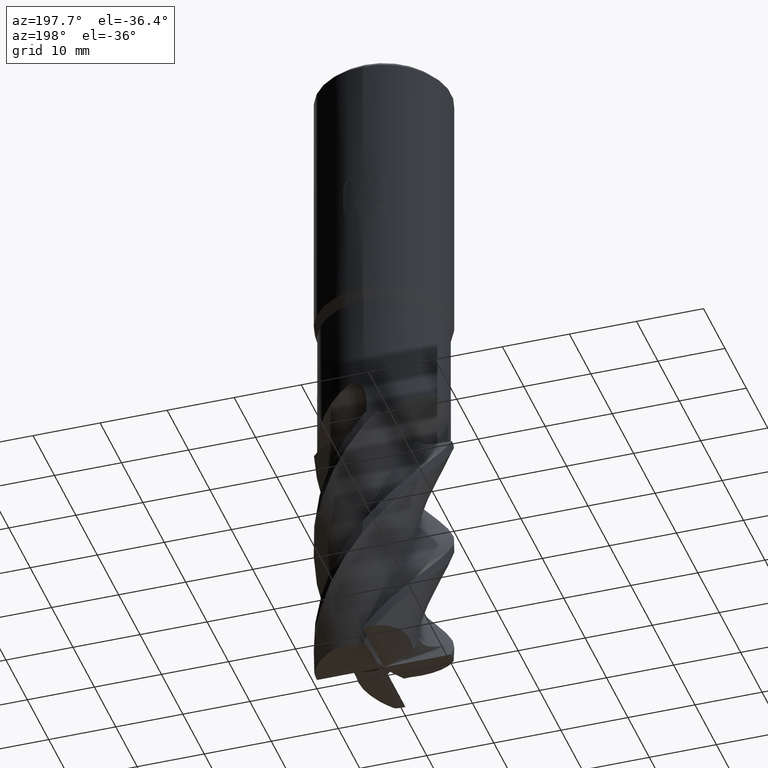
[diagram: clean part render]
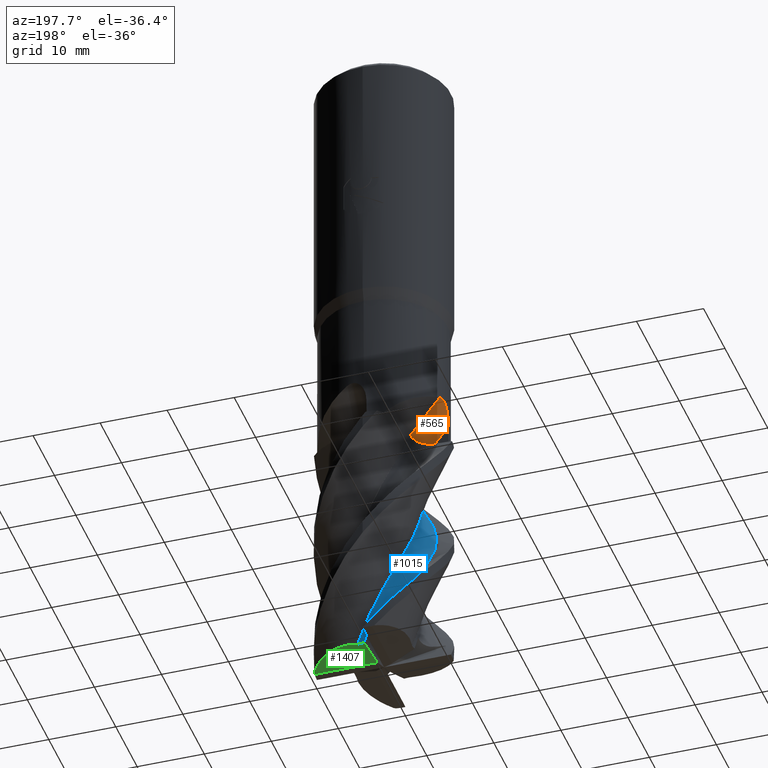
[diagram: same view with three faces highlighted in distinct colors, each labeled with its STEP entity id]
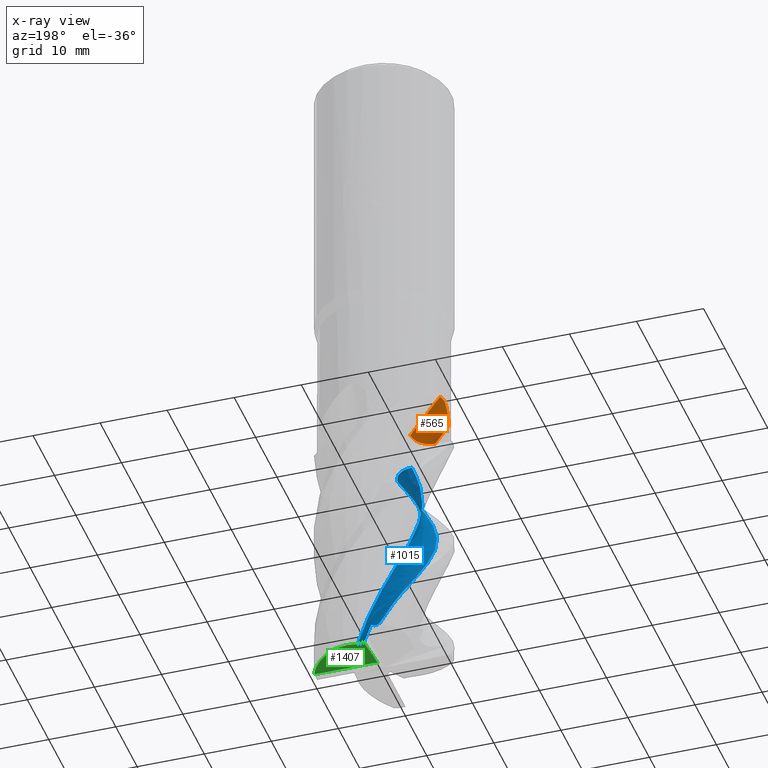
[diagram: x-ray of the same camera — body ghosted, the three highlighted faces saturated]
A machine part, auxiliary view with three faces highlighted in distinct colors.
The next image is the same camera in x-ray (body ghosted, the three faces saturated) — at least one of them is partly hidden behind the body in this view.
Their STEP definitions:

[orange] entity #565 — the highlighted face is a SurfaceOfRevolution surface.
#565=ADVANCED_FACE('',(#1525),#1526,.F.);
#691=EDGE_CURVE('',#1255,#899,#1662,.T.);
#703=EDGE_CURVE('',#875,#1255,#1674,.T.);
#719=EDGE_CURVE('',#875,#823,#1691,.T.);
#823=VERTEX_POINT('',#1804);
#875=VERTEX_POINT('',#1858);
#899=VERTEX_POINT('',#1884);
#1255=VERTEX_POINT('',#2276);
#1303=EDGE_CURVE('',#899,#823,#2329,.T.);
#1525=FACE_OUTER_BOUND('',#3275,.T.);
#1526=SURFACE_OF_REVOLUTION('',#3276,#3277);
#1662=CIRCLE('',#3970,169.294436213456);
#1674=CIRCLE('',#4023,2.875);
#1691=CIRCLE('',#4049,168.508019031104);
#1804=CARTESIAN_POINT('',(-9.49177258197859,-0.39408533910758,-59.3615788826867));
#1858=CARTESIAN_POINT('',(-7.51669513574795,-0.35343915504734,-61.9999999999951));
#1884=CARTESIAN_POINT('',(-9.14592295504645,2.56926902111368,-56.1878462320742));
#2276=CARTESIAN_POINT('',(-4.77990298355633,2.65342278330758,-61.9999999999951));
#2329=B_SPLINE_CURVE_WITH_KNOTS('',3,(#9956,#9957,#9958,#9959,#9960,#9961,#9962,#9963,#9964,#9965,#9966,#9967,#9968,#9969),.UNSPECIFIED.,.F.,.F.,(4,2,2,2,2,2,4),(0.0,0.732613013279401,1.36558704273743,2.04657484516802,2.98070721254951,4.03699958921365,5.14732681406137),.UNSPECIFIED.);
#3275=EDGE_LOOP('',(#10811,#10812,#10813,#10814));
#3276=(B_SPLINE_CURVE(3,(#10816,#10817,#10818,#10819,#10820),.UNSPECIFIED.,.F.,.F.)B_SPLINE_CURVE_WITH_KNOTS((4,1,4),(-1.19961172571473,-0.785398163361073,-0.371184601007419),.UNSPECIFIED.)RATIONAL_B_SPLINE_CURVE((1.1715728752377,1.05719095841257,0.942809041587432,1.05719095841257,1.1715728752377))BOUNDED_CURVE()REPRESENTATION_ITEM('')GEOMETRIC_REPRESENTATION_ITEM()CURVE());
#3277=AXIS1_PLACEMENT('',#10827,#10828);
#3970=AXIS2_PLACEMENT_3D('',#10953,#10954,#10955);
#4023=AXIS2_PLACEMENT_3D('',#10959,#10960,#10961);
#4049=AXIS2_PLACEMENT_3D('',#10971,#10972,#10973);
#9956=CARTESIAN_POINT('',(-9.14592295504822,2.56926902110741,-56.1878462323343));
#9957=CARTESIAN_POINT('',(-9.20714841644829,2.35132245799859,-56.0962684124973));
#9958=CARTESIAN_POINT('',(-9.26351361049668,2.12033981813184,-56.0426993187844));
#9959=CARTESIAN_POINT('',(-9.35353560888293,1.67475945129296,-56.0433158578866));
#9960=CARTESIAN_POINT('',(-9.3870771095725,1.47307926542929,-56.0839098540442));
#9961=CARTESIAN_POINT('',(-9.44167498067975,1.07142739087939,-56.2480480727839));
#9962=CARTESIAN_POINT('',(-9.46037230334028,0.882505424464488,-56.3736241078467));
#9963=CARTESIAN_POINT('',(-9.49043577823173,0.48387624666433,-56.733780461498));
#9964=CARTESIAN_POINT('',(-9.49662525499514,0.293639512245501,-56.990237134853));
#9965=CARTESIAN_POINT('',(-9.50145497633294,-0.0299313587925358,-57.5715458102741));
#9966=CARTESIAN_POINT('',(-9.49904386242732,-0.157642442013436,-57.909573448037));
#9967=CARTESIAN_POINT('',(-9.49442164584625,-0.336814810070139,-58.6138815606055));
#9968=CARTESIAN_POINT('',(-9.49210287405642,-0.386130063998785,-58.9884374972583));
#9969=CARTESIAN_POINT('',(-9.49177258198277,-0.394085339007568,-59.3615788826872));
#10811=ORIENTED_EDGE('',*,*,#1303,.F.);
#10812=ORIENTED_EDGE('',*,*,#691,.F.);
#10813=ORIENTED_EDGE('',*,*,#703,.F.);
#10814=ORIENTED_EDGE('',*,*,#719,.T.);
#10816=CARTESIAN_POINT('',(-7.51669513575265,-0.353439154947385,-61.9999999999951));
#10817=CARTESIAN_POINT('',(-6.76656278334896,-0.318167517583396,-61.9999999999951));
#10818=CARTESIAN_POINT('',(-5.26760958818009,0.348403951595861,-61.9999999999951));
#10819=CARTESIAN_POINT('',(-4.7446313464415,1.90329043089227,-61.9999999999951));
#10820=CARTESIAN_POINT('',(-4.77990298375569,2.6534227832983,-61.9999999999951));
#10827=CARTESIAN_POINT('',(-131.866497621159,69.2171504252292,-151.955612193337));
#10828=DIRECTION('',(0.32392158403507,0.910646375784137,0.256511180394593));
#10953=CARTESIAN_POINT('',(-130.692381006918,72.5179648574991,-151.025837663069));
#10954=DIRECTION('',(-0.32392158403507,-0.910646375784137,-0.256511180394593));
#10955=DIRECTION('',(0.737919915548547,-0.412862907070773,0.533871162549445));
#10959=CARTESIAN_POINT('',(-7.6517300289768,2.51838789026476,-61.9999999999951));
#10960=DIRECTION('',(-1.22124532708767E-015,1.2493478473985E-014,1.0));
#10961=DIRECTION('',(0.998896363555319,0.0469686584432635,6.33095593023938E-016));
#10971=CARTESIAN_POINT('',(-131.866497621188,69.2171504251477,-151.95561219336));
#10972=DIRECTION('',(-0.32392158403507,-0.910646375784137,-0.256511180394593));
#10973=DIRECTION('',(0.737919915548547,-0.412862907070773,0.533871162549445));

[blue] entity #1015 — the highlighted face is a freeform B-spline surface patch.
#541=VERTEX_POINT('',#1500);
#681=EDGE_CURVE('',#1095,#1333,#1652,.T.);
#707=VERTEX_POINT('',#1678);
#829=EDGE_CURVE('',#1353,#1333,#1810,.T.);
#1015=ADVANCED_FACE('',(#2010),#2011,.T.);
#1045=EDGE_CURVE('',#541,#1131,#2044,.T.);
#1095=VERTEX_POINT('',#2099);
#1119=EDGE_CURVE('',#707,#1095,#2125,.T.);
#1131=VERTEX_POINT('',#2138);
#1199=EDGE_CURVE('',#1353,#541,#2214,.T.);
#1333=VERTEX_POINT('',#2362);
#1337=EDGE_CURVE('',#1131,#707,#2366,.T.);
#1353=VERTEX_POINT('',#2384);
#1500=CARTESIAN_POINT('',(0.257245450401672,5.1968307244328,-96.1044122415691));
#1652=B_SPLINE_CURVE_WITH_KNOTS('',3,(#3949,#3950,#3951,#3952,#3953,#3954,#3955,#3956,#3957,#3958),.UNSPECIFIED.,.F.,.F.,(4,2,2,2,4),(0.0,1.12331201311416,2.24660096088083,3.36979158464705,4.49322326848646),.UNSPECIFIED.);
#1678=CARTESIAN_POINT('',(2.38364188820489,4.91967659500782,-98.8438318196049));
#1810=B_SPLINE_CURVE_WITH_KNOTS('',3,(#5522,#5523,#5524,#5525,#5526,#5527,#5528,#5529,#5530,#5531,#5532,#5533,#5534,#5535,#5536,#5537,#5538,#5539,#5540,#5541,#5542,#5543,#5544,#5545,#5546,#5547,#5548,#5549,#5550,#5551,#5552,#5553,#5554,#5555,#5556,#5557,#5558,#5559,#5560,#5561,#5562,#5563,#5564,#5565,#5566,#5567,#5568,#5569,#5570,#5571,#5572,#5573,#5574),.UNSPECIFIED.,.F.,.F.,(4,1,2,1,2,1,2,1,2,1,2,1,2,1,2,1,2,1,2,1,2,1,2,1,2,1,2,1,2,1,2,1,2,1,4),(0.0,1.22301984073094,2.44603968146188,3.66905952219281,4.89207936292375,7.33811904438563,9.7841587258475,12.2301984073094,14.6762380887713,17.1222777702331,19.568317451695,22.0143571331569,24.4603968146188,26.9064364960806,29.3524761775425,31.7985158590044,34.2445555404663,36.6905952219281,39.13663490339,41.5826745848519,44.0287142663138,46.4747539477756,48.9207936292375,51.3668333106994,53.8128729921613,56.2589126736231,58.704952355085,61.1509920365469,63.5970317180088,66.0430713994706,68.4891110809325,70.9351507623944,73.3811904438563,75.8272301253181,78.27326980678),.UNSPECIFIED.);
#2010=FACE_OUTER_BOUND('',#7348,.T.);
#2011=B_SPLINE_SURFACE_WITH_KNOTS('',3,3,((#7349,#7350,#7351,#7352,#7353,#7354,#7355,#7356,#7357,#7358,#7359,#7360,#7361,#7362,#7363,#7364,#7365,#7366,#7367,#7368,#7369,#7370,#7371,#7372,#7373,#7374,#7375,#7376,#7377,#7378,#7379,#7380,#7381,#7382,#7383,#7384,#7385,#7386,#7387,#7388,#7389,#7390,#7391,#7392,#7393,#7394,#7395,#7396,#7397,#7398,#7399,#7400,#7401),(#7402,#7403,#7404,#7405,#7406,#7407,#7408,#7409,#7410,#7411,#7412,#7413,#7414,#7415,#7416,#7417,#7418,#7419,#7420,#7421,#7422,#7423,#7424,#7425,#7426,#7427,#7428,#7429,#7430,#7431,#7432,#7433,#7434,#7435,#7436,#7437,#7438,#7439,#7440,#7441,#7442,#7443,#7444,#7445,#7446,#7447,#7448,#7449,#7450,#7451,#7452,#7453,#7454),(#7455,#7456,#7457,#7458,#7459,#7460,#7461,#7462,#7463,#7464,#7465,#7466,#7467,#7468,#7469,#7470,#7471,#7472,#7473,#7474,#7475,#7476,#7477,#7478,#7479,#7480,#7481,#7482,#7483,#7484,#7485,#7486,#7487,#7488,#7489,#7490,#7491,#7492,#7493,#7494,#7495,#7496,#7497,#7498,#7499,#7500,#7501,#7502,#7503,#7504,#7505,#7506,#7507),(#7508,#7509,#7510,#7511,#7512,#7513,#7514,#7515,#7516,#7517,#7518,#7519,#7520,#7521,#7522,#7523,#7524,#7525,#7526,#7527,#7528,#7529,#7530,#7531,#7532,#7533,#7534,#7535,#7536,#7537,#7538,#7539,#7540,#7541,#7542,#7543,#7544,#7545,#7546,#7547,#7548,#7549,#7550,#7551,#7552,#7553,#7554,#7555,#7556,#7557,#7558,#7559,#7560),(#7561,#7562,#7563,#7564,#7565,#7566,#7567,#7568,#7569,#7570,#7571,#7572,#7573,#7574,#7575,#7576,#7577,#7578,#7579,#7580,#7581,#7582,#7583,#7584,#7585,#7586,#7587,#7588,#7589,#7590,#7591,#7592,#7593,#7594,#7595,#7596,#7597,#7598,#7599,#7600,#7601,#7602,#7603,#7604,#7605,#7606,#7607,#7608,#7609,#7610,#7611,#7612,#7613),(#7614,#7615,#7616,#7617,#7618,#7619,#7620,#7621,#7622,#7623,#7624,#7625,#7626,#7627,#7628,#7629,#7630,#7631,#7632,#7633,#7634,#7635,#7636,#7637,#7638,#7639,#7640,#7641,#7642,#7643,#7644,#7645,#7646,#7647,#7648,#7649,#7650,#7651,#7652,#7653,#7654,#7655,#7656,#7657,#7658,#7659,#7660,#7661,#7662,#7663,#7664,#7665,#7666),(#7667,#7668,#7669,#7670,#7671,#7672,#7673,#7674,#7675,#7676,#7677,#7678,#7679,#7680,#7681,#7682,#7683,#7684,#7685,#7686,#7687,#7688,#7689,#7690,#7691,#7692,#7693,#7694,#7695,#7696,#7697,#7698,#7699,#7700,#7701,#7702,#7703,#7704,#7705,#7706,#7707,#7708,#7709,#7710,#7711,#7712,#7713,#7714,#7715,#7716,#7717,#7718,#7719)),.UNSPECIFIED.,.F.,.F.,.F.,(4,1,1,1,4),(4,1,2,1,2,1,2,1,2,1,2,1,2,1,2,1,2,1,2,1,2,1,2,1,2,1,2,1,2,1,2,1,2,1,4),(-4.63397436365283E-016,0.392699081681333,0.785398163362667,1.178097245044,1.57079632672533),(0.0,1.22301984073094,2.44603968146188,3.66905952219281,4.89207936292375,7.33811904438563,9.7841587258475,12.2301984073094,14.6762380887713,17.1222777702331,19.568317451695,22.0143571331569,24.4603968146188,26.9064364960806,29.3524761775425,31.7985158590044,34.2445555404663,36.6905952219281,39.13663490339,41.5826745848519,44.0287142663138,46.4747539477756,48.9207936292375,51.3668333106994,53.8128729921613,56.2589126736231,58.704952355085,61.1509920365469,63.5970317180088,66.0430713994706,68.4891110809325,70.9351507623944,73.3811904438563,75.8272301253181,78.27326980678),.UNSPECIFIED.);
#2044=B_SPLINE_CURVE_WITH_KNOTS('',3,(#8150,#8151,#8152,#8153,#8154,#8155,#8156,#8157,#8158,#8159),.UNSPECIFIED.,.F.,.F.,(4,2,2,2,4),(0.0,2.78678132966657,4.95487933569779,8.66180026936613,11.9106485270044),.UNSPECIFIED.);
#2099=CARTESIAN_POINT('',(-2.63124668642199,-4.79210471077057,-62.0));
#2125=B_SPLINE_CURVE_WITH_KNOTS('',3,(#8566,#8567,#8568,#8569,#8570,#8571,#8572,#8573,#8574,#8575,#8576,#8577,#8578,#8579,#8580,#8581,#8582,#8583,#8584,#8585,#8586,#8587,#8588,#8589,#8590,#8591,#8592,#8593,#8594,#8595,#8596,#8597,#8598,#8599,#8600,#8601,#8602,#8603,#8604,#8605,#8606,#8607,#8608,#8609,#8610,#8611,#8612,#8613,#8614,#8615),.UNSPECIFIED.,.F.,.F.,(4,2,2,2,2,2,2,2,2,2,2,2,2,2,2,2,2,2,2,2,2,2,2,2,4),(-42.6793263920288,-41.6484022208641,-41.3031574377632,-39.9343051845463,-37.2058659389724,-35.3593374630501,-34.1427976298384,-31.2942805886592,-30.9484219182684,-30.55254895782,-26.5344493686802,-25.4755072249169,-23.7536245476932,-21.1447431195852,-20.2111287850792,-19.2419916423693,-16.6354996278018,-14.1723806976053,-11.5471699520155,-8.99212931045443,-6.42373237819223,-5.1359164599218,-4.13359003635742,-3.09989081943267,-0.0),.UNSPECIFIED.);
#2138=CARTESIAN_POINT('',(1.40514740391976,5.00926803873214,-98.8147217949249));
#2214=B_SPLINE_CURVE_WITH_KNOTS('',3,(#9140,#9141,#9142,#9143,#9144,#9145,#9146,#9147,#9148,#9149,#9150,#9151),.UNSPECIFIED.,.F.,.F.,(4,2,2,2,2,4),(0.0,1.4830495366759,2.54994211312789,3.38260788099896,4.09551694961876,4.84909788159366),.UNSPECIFIED.);
#2362=CARTESIAN_POINT('',(0.325351321170704,-7.51982989433022,-62.0));
#2366=B_SPLINE_CURVE_WITH_KNOTS('',3,(#10044,#10045,#10046,#10047,#10048,#10049),.UNSPECIFIED.,.F.,.F.,(4,2,4),(0.0,1.04268684859747,2.03928512485997),.UNSPECIFIED.);
#2384=CARTESIAN_POINT('',(-2.18351594832898,7.20321874456389,-96.4458820659791));
#3949=CARTESIAN_POINT('',(-2.65514742478642,-4.79291087818859,-62.0));
#3950=CARTESIAN_POINT('',(-2.28097862706557,-4.77873234936718,-62.0));
#3951=CARTESIAN_POINT('',(-1.90761566024953,-4.83777279613449,-62.0));
#3952=CARTESIAN_POINT('',(-1.20454765311654,-5.09564285093505,-62.0));
#3953=CARTESIAN_POINT('',(-0.881560300967394,-5.29200537373722,-62.0));
#3954=CARTESIAN_POINT('',(-0.329067734207787,-5.79746714412028,-62.0));
#3955=CARTESIAN_POINT('',(-0.104835927310138,-6.1017246817942,-62.0));
#3956=CARTESIAN_POINT('',(0.214401179638466,-6.77914391834613,-62.0));
#3957=CARTESIAN_POINT('',(0.306323648496787,-7.14583786094795,-62.0));
#3958=CARTESIAN_POINT('',(0.325351321170704,-7.51982989433022,-62.0));
#5522=CARTESIAN_POINT('',(7.51693009017606,-0.348406399777329,-120.0));
#5523=CARTESIAN_POINT('',(7.51766399338695,-0.374437442715427,-119.593760378705));
#5524=CARTESIAN_POINT('',(7.53033117938851,-0.249215978276747,-118.781160969234));
#5525=CARTESIAN_POINT('',(7.53269183268163,0.241186472302889,-117.968515887395));
#5526=CARTESIAN_POINT('',(7.47901977231298,0.908494174925453,-117.156108502827));
#5527=CARTESIAN_POINT('',(7.38694276948466,1.52053256174088,-116.343745428496));
#5528=CARTESIAN_POINT('',(7.25149621381663,2.02963149337607,-115.53130413206));
#5529=CARTESIAN_POINT('',(7.03190937675232,2.72916499351432,-114.312487821094));
#5530=CARTESIAN_POINT('',(6.6486837874688,3.63379781200078,-112.687394028356));
#5531=CARTESIAN_POINT('',(6.07104179623086,4.48104915109853,-111.062341831817));
#5532=CARTESIAN_POINT('',(5.38465213634175,5.28548042698173,-109.437396097497));
#5533=CARTESIAN_POINT('',(4.63603566661421,5.99453871688223,-107.812462119995));
#5534=CARTESIAN_POINT('',(3.76906469020172,6.53593502358337,-106.187451564383));
#5535=CARTESIAN_POINT('',(2.83396094012424,6.99225855023864,-104.562430281908));
#5536=CARTESIAN_POINT('',(1.87338334668337,7.34277879097564,-102.937431785487));
#5537=CARTESIAN_POINT('',(0.861049289898261,7.49564266409871,-101.312411799721));
#5538=CARTESIAN_POINT('',(-0.180809722361989,7.5426391574397,-99.687417269827));
#5539=CARTESIAN_POINT('',(-1.20215561156055,7.48198279339175,-98.0624386755875));
#5540=CARTESIAN_POINT('',(-2.19116873839692,7.21975754063045,-96.4374201764214));
#5541=CARTESIAN_POINT('',(-3.16578142598609,6.8484996794182,-94.8124178789876));
#5542=CARTESIAN_POINT('',(-4.0790179395703,6.38649472668123,-93.1874340776671));
#5543=CARTESIAN_POINT('',(-4.88223984245148,5.75236557778732,-91.5624154956503));
#5544=CARTESIAN_POINT('',(-5.6286298516352,5.0241979217678,-89.9374150925956));
#5545=CARTESIAN_POINT('',(-6.282633451157,4.23722208692985,-88.3124324224031));
#5546=CARTESIAN_POINT('',(-6.76736590241679,3.33598611301374,-86.6874137811898));
#5547=CARTESIAN_POINT('',(-7.16259043100062,2.37094374453506,-85.0624130134415));
#5548=CARTESIAN_POINT('',(-7.44963746977878,1.38869791932962,-83.4374301676458));
#5549=CARTESIAN_POINT('',(-7.53590395524602,0.36900635655631,-81.8124115663934));
#5550=CARTESIAN_POINT('',(-7.5146746893996,-0.673585823109133,-80.1874108480048));
#5551=CARTESIAN_POINT('',(-7.38735615031054,-1.68894210826951,-78.562428013131));
#5552=CARTESIAN_POINT('',(-7.06092856384865,-2.65881473959057,-76.9374094014027));
#5553=CARTESIAN_POINT('',(-6.62676027470026,-3.60695043906763,-75.3124086895026));
#5554=CARTESIAN_POINT('',(-6.10608712460516,-4.48790057598395,-73.6874258672646));
#5555=CARTESIAN_POINT('',(-5.42082065501945,-5.24792328738513,-72.0624072716613));
#5556=CARTESIAN_POINT('',(-4.64534751230229,-5.94514748655262,-70.4374065736654));
#5557=CARTESIAN_POINT('',(-3.81723768335993,-6.54631330508281,-68.8124237330058));
#5558=CARTESIAN_POINT('',(-2.88622747287683,-6.97105929493801,-67.1874050455067));
#5559=CARTESIAN_POINT('',(-1.89743180592207,-7.30231223526258,-65.5624042248069));
#5560=CARTESIAN_POINT('',(-0.898515614374008,-7.52450855631253,-63.9374214577171));
#5561=CARTESIAN_POINT('',(0.124661404398295,-7.54390014827464,-62.3124031969691));
#5562=CARTESIAN_POINT('',(1.16364730061601,-7.4545247851803,-60.6874029100718));
#5563=CARTESIAN_POINT('',(2.16846873886697,-7.26107631445341,-59.0624197447078));
#5564=CARTESIAN_POINT('',(3.11496530944101,-6.8719026008004,-57.4373997449142));
#5565=CARTESIAN_POINT('',(4.0328254155415,-6.37655214072894,-55.8123975202453));
#5566=CARTESIAN_POINT('',(4.87790456219794,-5.79925769134553,-54.1874161517759));
#5567=CARTESIAN_POINT('',(5.59101730569861,-5.06616351425001,-52.5624018530916));
#5568=CARTESIAN_POINT('',(6.23536820061672,-4.24778172264647,-50.9374047720223));
#5569=CARTESIAN_POINT('',(6.78129792182725,-3.38250976077247,-49.3124156719365));
#5570=CARTESIAN_POINT('',(7.14564793964662,-2.42239894474803,-47.687385380071));
#5571=CARTESIAN_POINT('',(7.41240694024927,-1.40820341139259,-46.0623789850913));
#5572=CARTESIAN_POINT('',(7.56690450087128,-0.396917556294444,-44.4374168819762));
#5573=CARTESIAN_POINT('',(7.51971238856159,0.609234702442814,-42.8124292694027));
#5574=CARTESIAN_POINT('',(7.44419096943386,1.1133186256714,-41.9999353015874));
#7348=EDGE_LOOP('',(#11243,#11244,#11245,#11246,#11247,#11248));
#7349=CARTESIAN_POINT('',(4.51190119880654,-3.08721113193414,-120.0));
#7350=CARTESIAN_POINT('',(4.51524322899714,-3.11610382286491,-119.593768411031));
#7351=CARTESIAN_POINT('',(4.58917170861519,-3.06013871840661,-118.78060100899));
#7352=CARTESIAN_POINT('',(4.78076581627041,-2.75699189989394,-117.967197499112));
#7353=CARTESIAN_POINT('',(4.9961917282453,-2.31605559725722,-117.155338148176));
#7354=CARTESIAN_POINT('',(5.16883258850242,-1.89714969170703,-116.343747876049));
#7355=CARTESIAN_POINT('',(5.27994279550028,-1.52872133401086,-115.531622990232));
#7356=CARTESIAN_POINT('',(5.41503697790628,-1.01082684962153,-114.312424192179));
#7357=CARTESIAN_POINT('',(5.52823535868766,-0.302521388352476,-112.686807230555));
#7358=CARTESIAN_POINT('',(5.49588480233488,0.446022687883692,-111.061476902276));
#7359=CARTESIAN_POINT('',(5.37718956688334,1.20967755949133,-109.436843998997));
#7360=CARTESIAN_POINT('',(5.18525835775153,1.93792388798994,-107.812284087169));
#7361=CARTESIAN_POINT('',(4.85589478790535,2.60798490320984,-106.187215946125));
#7362=CARTESIAN_POINT('',(4.45006683834334,3.25084516038129,-104.562078291245));
#7363=CARTESIAN_POINT('',(3.98905611551164,3.83837816597191,-102.937092088323));
#7364=CARTESIAN_POINT('',(3.41961334817729,4.32325333384168,-101.311965084728));
#7365=CARTESIAN_POINT('',(2.7900459813916,4.75260311258176,-99.6870055977501));
#7366=CARTESIAN_POINT('',(2.13291553327871,5.10836857642134,-98.0621508571898));
#7367=CARTESIAN_POINT('',(1.41806321474878,5.32667714479379,-96.4370327670634));
#7368=CARTESIAN_POINT('',(0.669664459637298,5.47022389499008,-94.812021589412));
#7369=CARTESIAN_POINT('',(-0.074979799030407,5.53528513095286,-93.1871324521088));
#7370=CARTESIAN_POINT('',(-0.817812643737092,5.45117572326192,-91.5620140537044));
#7371=CARTESIAN_POINT('',(-1.56142828315366,5.28522627424691,-89.9370154945107));
#7372=CARTESIAN_POINT('',(-2.27038069927681,5.04879543739392,-88.3121338328947));
#7373=CARTESIAN_POINT('',(-2.91845536995069,4.67620377986173,-86.6870149801742));
#7374=CARTESIAN_POINT('',(-3.53476678594239,4.22813837476447,-85.0620139811539));
#7375=CARTESIAN_POINT('',(-4.09122429010573,3.72918981299303,-83.4371311546494));
#7376=CARTESIAN_POINT('',(-4.53763024613877,3.12955821834894,-81.8120125834688));
#7377=CARTESIAN_POINT('',(-4.92486463395386,2.47334225150787,-80.1870119231299));
#7378=CARTESIAN_POINT('',(-5.23695086383405,1.79424518160549,-78.5621291786726));
#7379=CARTESIAN_POINT('',(-5.40802566058477,1.06653151763088,-76.9370105313418));
#7380=CARTESIAN_POINT('',(-5.50230381356891,0.310430194038539,-75.3120098946399));
#7381=CARTESIAN_POINT('',(-5.51853203030275,-0.436774962016068,-73.6871272016574));
#7382=CARTESIAN_POINT('',(-5.38604359729932,-1.17249884247416,-72.0620086700829));
#7383=CARTESIAN_POINT('',(-5.17180243448855,-1.90372203524111,-70.4370081889914));
#7384=CARTESIAN_POINT('',(-4.88949172907576,-2.59573028525208,-68.8121254918461));
#7385=CARTESIAN_POINT('',(-4.47530946613914,-3.21804584125014,-67.187006322503));
#7386=CARTESIAN_POINT('',(-3.98791128071872,-3.80371712525013,-65.5620047974434));
#7387=CARTESIAN_POINT('',(-3.45363913235864,-4.32635387599371,-63.9371221468102));
#7388=CARTESIAN_POINT('',(-2.82607794431654,-4.73259594212301,-62.3120059091278));
#7389=CARTESIAN_POINT('',(-2.14593062269123,-5.07608650998662,-60.6870087802051));
#7390=CARTESIAN_POINT('',(-1.44790096699008,-5.34308278835049,-59.0621251400353));
#7391=CARTESIAN_POINT('',(-0.710519042036873,-5.46620504481946,-57.4369970062386));
#7392=CARTESIAN_POINT('',(0.0502646993474023,-5.5108114848989,-55.8119838471334));
#7393=CARTESIAN_POINT('',(0.797020048069303,-5.47807490782117,-54.1871059758979));
#7394=CARTESIAN_POINT('',(1.52205615741117,-5.29786995778533,-52.5620173136074));
#7395=CARTESIAN_POINT('',(2.23690988545075,-5.03673322896618,-50.9370507379584));
#7396=CARTESIAN_POINT('',(2.90897421936311,-4.71011061627908,-49.3121453408592));
#7397=CARTESIAN_POINT('',(3.50491982800874,-4.25438587443237,-47.6869503066768));
#7398=CARTESIAN_POINT('',(4.06004007450653,-3.72611066974083,-46.0618862290408));
#7399=CARTESIAN_POINT('',(4.54539028834498,-3.15811152350845,-44.437087585809));
#7400=CARTESIAN_POINT('',(4.90452672686972,-2.51614121609505,-42.8120826714825));
#7401=CARTESIAN_POINT('',(5.05180807732969,-2.17419623596112,-41.9995734139953));
#7402=CARTESIAN_POINT('',(4.52934432591632,-2.71127897221626,-120.0));
#7403=CARTESIAN_POINT('',(4.53232836280882,-2.74015505370853,-119.593767296312));
#7404=CARTESIAN_POINT('',(4.59771450453499,-2.68366624048972,-118.780678726627));
#7405=CARTESIAN_POINT('',(4.76466743936391,-2.38064767069302,-117.967380480443));
#7406=CARTESIAN_POINT('',(4.94766482533131,-1.94250617083635,-117.155445066758));
#7407=CARTESIAN_POINT('',(5.09033922774199,-1.52828401234983,-116.343747537785));
#7408=CARTESIAN_POINT('',(5.17610511105641,-1.1667846246332,-115.531578732684));
#7409=CARTESIAN_POINT('',(5.27609667054204,-0.660213958936956,-114.312433028779));
#7410=CARTESIAN_POINT('',(5.34395359608019,0.028452494478713,-112.686888671081));
#7411=CARTESIAN_POINT('',(5.26945195452043,0.747769790907062,-111.061596945888));
#7412=CARTESIAN_POINT('',(5.11093068847094,1.47693997290957,-109.436920626933));
#7413=CARTESIAN_POINT('',(4.88381846758501,2.16749723577127,-107.812308796316));
#7414=CARTESIAN_POINT('',(4.52768749684163,2.79395218233255,-106.187248647254));
#7415=CARTESIAN_POINT('',(4.09942496932643,3.38996374188623,-104.56212714528));
#7416=CARTESIAN_POINT('',(3.62122771992231,3.92928858479677,-102.937139256586));
#7417=CARTESIAN_POINT('',(3.04452534334458,4.36344684794768,-101.312027041979));
#7418=CARTESIAN_POINT('',(2.41299590417127,4.74078735217579,-99.687062777381));
#7419=CARTESIAN_POINT('',(1.75927980513952,5.04546004706388,-98.0621907776626));
#7420=CARTESIAN_POINT('',(1.05793210690873,5.21437328892092,-96.4370865457849));
#7421=CARTESIAN_POINT('',(0.328419130351793,5.30941955400915,-94.8120765814974));
#7422=CARTESIAN_POINT('',(-0.392765328828374,5.32894887175681,-93.1871743270863));
#7423=CARTESIAN_POINT('',(-1.10355393115661,5.20488670233559,-91.562069756259));
#7424=CARTESIAN_POINT('',(-1.81055589075862,5.00195674472646,-89.9370709695596));
#7425=CARTESIAN_POINT('',(-2.47988046417051,4.73308723157939,-88.31217529739));
#7426=CARTESIAN_POINT('',(-3.0826659126099,4.33658434704947,-86.6870702706053));
#7427=CARTESIAN_POINT('',(-3.65067213100175,3.86915056258192,-85.0620694232556));
#7428=CARTESIAN_POINT('',(-4.1578657280283,3.35620068101032,-83.43717262725));
#7429=CARTESIAN_POINT('',(-4.55320795414356,2.75264474890478,-81.8120679549066));
#7430=CARTESIAN_POINT('',(-4.88842011111799,2.09787179678228,-80.1870672945677));
#7431=CARTESIAN_POINT('',(-5.14973893512046,1.42552304953442,-78.5621706549631));
#7432=CARTESIAN_POINT('',(-5.27240213750829,0.714519157868812,-76.9370658859262));
#7433=CARTESIAN_POINT('',(-5.31952387557967,-0.0195664119033301,-75.3120652492243));
#7434=CARTESIAN_POINT('',(-5.29185704569674,-0.740387232163096,-73.6871686588437));
#7435=CARTESIAN_POINT('',(-5.12159728235738,-1.44152412750207,-72.0620639775671));
#7436=CARTESIAN_POINT('',(-4.87284688030507,-2.13379125750352,-70.4370634964756));
#7437=CARTESIAN_POINT('',(-4.56075722651411,-2.78413291764192,-68.8121668911592));
#7438=CARTESIAN_POINT('',(-4.1256772185871,-3.35969229723183,-67.1870616349403));
#7439=CARTESIAN_POINT('',(-3.62211181659908,-3.89589637195146,-65.5620602615512));
#7440=CARTESIAN_POINT('',(-3.07709005353531,-4.36845898641736,-63.9371636709967));
#7441=CARTESIAN_POINT('',(-2.4489526352061,-4.72348879606364,-62.3120610576898));
#7442=CARTESIAN_POINT('',(-1.77364777594597,-5.01516216711449,-60.6870634737557));
#7443=CARTESIAN_POINT('',(-1.08567219030151,-5.23194243585864,-59.0621660705605));
#7444=CARTESIAN_POINT('',(-0.368131073103944,-5.30784750065215,-57.4370528275824));
#7445=CARTESIAN_POINT('',(0.367595479836302,-5.30683194237082,-55.8120413368525));
#7446=CARTESIAN_POINT('',(1.08514697794994,-5.23201741989392,-54.187148984785));
#7447=CARTESIAN_POINT('',(1.77321796469544,-5.01640447576203,-52.5620706908776));
#7448=CARTESIAN_POINT('',(2.44698727582524,-4.72340849788002,-50.9370998684551));
#7449=CARTESIAN_POINT('',(3.07554295969913,-4.36978467762515,-49.3121827581651));
#7450=CARTESIAN_POINT('',(3.62331956293507,-3.8962034310134,-47.6870109023809));
#7451=CARTESIAN_POINT('',(4.1277638549251,-3.35499548802484,-46.0619544082691));
#7452=CARTESIAN_POINT('',(4.56244713146086,-2.77963500722246,-44.4371333955843));
#7453=CARTESIAN_POINT('',(4.87115363224796,-2.14042067898384,-42.8121307750391));
#7454=CARTESIAN_POINT('',(4.99324041328533,-1.80244487066501,-41.9996236409386));
#7455=CARTESIAN_POINT('',(4.71371697069067,-1.96650945388016,-120.0));
#7456=CARTESIAN_POINT('',(4.71599177181313,-1.99520995775684,-119.593765092206));
#7457=CARTESIAN_POINT('',(4.76450510479467,-1.93427700517085,-118.780832369925));
#7458=CARTESIAN_POINT('',(4.88213507705846,-1.62171600567318,-117.967742225636));
#7459=CARTESIAN_POINT('',(4.99917768779753,-1.17626738884543,-117.155656438101));
#7460=CARTESIAN_POINT('',(5.08006922814382,-0.759494224203956,-116.343746865174));
#7461=CARTESIAN_POINT('',(5.11240177176297,-0.401771410103513,-115.531491246598));
#7462=CARTESIAN_POINT('',(5.13769980292694,0.0961153625941529,-114.31245048085));
#7463=CARTESIAN_POINT('',(5.10708324389095,0.763542598808308,-112.687049679157));
#7464=CARTESIAN_POINT('',(4.9366748703023,1.44118054749512,-111.06183427399));
#7465=CARTESIAN_POINT('',(4.68480501157966,2.1172331108743,-109.437072107903));
#7466=CARTESIAN_POINT('',(4.37235816017741,2.74641827389567,-107.812357652381));
#7467=CARTESIAN_POINT('',(3.94536315017934,3.29632381497228,-106.187313289137));
#7468=CARTESIAN_POINT('',(3.45361104869715,3.8075790660861,-104.562223733573));
#7469=CARTESIAN_POINT('',(2.9218774226255,4.25734230371342,-102.937232425479));
#7470=CARTESIAN_POINT('',(2.31049071593157,4.59297502829854,-101.312149682115));
#7471=CARTESIAN_POINT('',(1.65435590477372,4.86709907029204,-99.6871756644836));
#7472=CARTESIAN_POINT('',(0.987149426049346,5.06825002702179,-98.06226979345));
#7473=CARTESIAN_POINT('',(0.293162640070797,5.13302316659772,-96.4371928270697));
#7474=CARTESIAN_POINT('',(-0.417873469702663,5.12357870699383,-94.8121853342438));
#7475=CARTESIAN_POINT('',(-1.11025454395989,5.04273433580806,-93.1872570711436));
#7476=CARTESIAN_POINT('',(-1.77285578137096,4.8260406964872,-91.5621799218547));
#7477=CARTESIAN_POINT('',(-2.42135158292166,4.53460545442057,-89.937180596109));
#7478=CARTESIAN_POINT('',(-3.02433673107121,4.18511378371833,-88.3122571861906));
#7479=CARTESIAN_POINT('',(-3.54607139969002,3.72278872730281,-86.6871797900377));
#7480=CARTESIAN_POINT('',(-4.02518962683365,3.19741724172714,-85.062178816103));
#7481=CARTESIAN_POINT('',(-4.43944395408805,2.63688025275049,-83.4372547166399));
#7482=CARTESIAN_POINT('',(-4.73424075790166,2.00517120845339,-81.8121774339198));
#7483=CARTESIAN_POINT('',(-4.96485657182946,1.33259646175622,-80.1871767482638));
#7484=CARTESIAN_POINT('',(-5.12197834921009,0.653553261214557,-78.5622526495342));
#7485=CARTESIAN_POINT('',(-5.14119405235924,-0.0432895485413148,-76.9371753353269));
#7486=CARTESIAN_POINT('',(-5.08526784390849,-0.752105168921777,-75.3121746658924));
#7487=CARTESIAN_POINT('',(-4.95933747529776,-1.43762381377432,-73.6872505830202));
#7488=CARTESIAN_POINT('',(-4.6997970703828,-2.08462147588276,-72.0621734027514));
#7489=CARTESIAN_POINT('',(-4.36655131744296,-2.7127159282532,-70.4371727511607));
#7490=CARTESIAN_POINT('',(-3.97834717065632,-3.2915838564978,-68.8122487418995));
#7491=CARTESIAN_POINT('',(-3.48288733145813,-3.78196084241997,-67.1871710568239));
#7492=CARTESIAN_POINT('',(-2.92732309266253,-4.22568037918327,-65.5621698389295));
#7493=CARTESIAN_POINT('',(-2.3408941055668,-4.60239055511848,-63.9372458112582));
#7494=CARTESIAN_POINT('',(-1.69123924828501,-4.855246527561,-62.3121700571528));
#7495=CARTESIAN_POINT('',(-1.00501167355077,-5.04138171137786,-60.6871716262244));
#7496=CARTESIAN_POINT('',(-0.317170949548761,-5.15375298521497,-59.0622468310175));
#7497=CARTESIAN_POINT('',(0.379473358922768,-5.12735357444128,-57.4371634710358));
#7498=CARTESIAN_POINT('',(1.08323817792723,-5.02514904489005,-55.812154703318));
#7499=CARTESIAN_POINT('',(1.75912707867951,-4.85458303673338,-54.1872341777349));
#7500=CARTESIAN_POINT('',(2.38736375315557,-4.55346944949782,-52.5621761691424));
#7501=CARTESIAN_POINT('',(2.99165076669003,-4.18043068328222,-50.9371970425849));
#7502=CARTESIAN_POINT('',(3.54394478249706,-3.75551411361825,-49.3122570516887));
#7503=CARTESIAN_POINT('',(4.0025045371795,-3.22707243741104,-47.6871300079911));
#7504=CARTESIAN_POINT('',(4.41076109121629,-2.63985256163473,-46.0620898836906));
#7505=CARTESIAN_POINT('',(4.74705916077375,-2.02962425440365,-44.4372235998133));
#7506=CARTESIAN_POINT('',(4.95383110475447,-1.37586664208524,-42.8122259028435));
#7507=CARTESIAN_POINT('',(5.02396095165926,-1.03580861647093,-41.9997229369162));
#7508=CARTESIAN_POINT('',(5.39678006242423,-1.04014691255924,-120.0));
#7509=CARTESIAN_POINT('',(5.39817270285624,-1.06819694764865,-119.593762365099));
#7510=CARTESIAN_POINT('',(5.42585257725951,-0.991418864307069,-118.781022492732));
#7511=CARTESIAN_POINT('',(5.48060205812712,-0.637318856126149,-117.968189852331));
#7512=CARTESIAN_POINT('',(5.51043028236374,-0.143881718771949,-117.155917996656));
#7513=CARTESIAN_POINT('',(5.50715923600594,0.311893371768255,-116.34374603401));
#7514=CARTESIAN_POINT('',(5.46326873854387,0.695055516107874,-115.53138298373));
#7515=CARTESIAN_POINT('',(5.38006147451193,1.22378476417906,-114.312472088229));
#7516=CARTESIAN_POINT('',(5.20077477855372,1.9183045388431,-112.687248918279));
#7517=CARTESIAN_POINT('',(4.87351992542267,2.59323288315419,-111.062127927064));
#7518=CARTESIAN_POINT('',(4.46178295209929,3.24925465136418,-109.437259574533));
#7519=CARTESIAN_POINT('',(3.99583721624587,3.842368423041,-107.812418086386));
#7520=CARTESIAN_POINT('',(3.4266861844244,4.32686099838518,-106.187393299862));
#7521=CARTESIAN_POINT('',(2.79828733630373,4.75709575792637,-104.562343232121));
#7522=CARTESIAN_POINT('',(2.14094302024582,5.11346504681285,-102.937347774356));
#7523=CARTESIAN_POINT('',(1.42492755592834,5.33245833978634,-101.312301341112));
#7524=CARTESIAN_POINT('',(0.675439921343913,5.47765591367728,-99.687315451326));
#7525=CARTESIAN_POINT('',(-0.0698899549640902,5.54307666143792,-98.0623675175485));
#7526=CARTESIAN_POINT('',(-0.813456582260693,5.45929290525033,-96.4373243464063));
#7527=CARTESIAN_POINT('',(-1.55886786407015,5.2944245889261,-94.8123199020892));
#7528=CARTESIAN_POINT('',(-2.26894879744849,5.05793426298182,-93.1873594747322));
#7529=CARTESIAN_POINT('',(-2.91794061901117,4.6851975585094,-91.562316218687));
#7530=CARTESIAN_POINT('',(-3.53615712551153,4.23751437773188,-89.9373162742366));
#7531=CARTESIAN_POINT('',(-4.09348133930051,3.73820355396586,-88.3123585835957));
#7532=CARTESIAN_POINT('',(-4.54067015558111,3.13812613025241,-86.6873151539657));
#7533=CARTESIAN_POINT('',(-4.92985457539898,2.48143065911342,-85.0623143383641));
#7534=CARTESIAN_POINT('',(-5.24261854880117,1.80158931064072,-83.4373562195207));
#7535=CARTESIAN_POINT('',(-5.4142273119319,1.07314384528652,-81.8123129000058));
#7536=CARTESIAN_POINT('',(-5.51009855407657,0.315853458382786,-80.1873121936675));
#7537=CARTESIAN_POINT('',(-5.52665307045854,-0.432282071048326,-78.5623541308695));
#7538=CARTESIAN_POINT('',(-5.39436808179431,-1.16888259642954,-76.9373107253257));
#7539=CARTESIAN_POINT('',(-5.181118099254,-1.90183033093148,-75.312310104903));
#7540=CARTESIAN_POINT('',(-4.8987356481145,-2.59483065879029,-73.6873520065913));
#7541=CARTESIAN_POINT('',(-4.48437951457015,-3.21804644036778,-72.0623086647308));
#7542=CARTESIAN_POINT('',(-3.99719051204862,-3.80570628352276,-70.4373080877586));
#7543=CARTESIAN_POINT('',(-3.46246715675284,-4.32920983528857,-68.8123499498447));
#7544=CARTESIAN_POINT('',(-2.83442593307603,-4.7361906490739,-67.1873064662065));
#7545=CARTESIAN_POINT('',(-2.15370399291291,-5.08158260207858,-65.5623054233884));
#7546=CARTESIAN_POINT('',(-1.45486323444164,-5.3492174040874,-63.9373474384235));
#7547=CARTESIAN_POINT('',(-0.716733823151005,-5.47281924301116,-62.3123049733911));
#7548=CARTESIAN_POINT('',(0.0452161722197418,-5.51895560277328,-60.6873054179087));
#7549=CARTESIAN_POINT('',(0.792805882073539,-5.48654544502932,-59.0623468778797));
#7550=CARTESIAN_POINT('',(1.51921643631206,-5.30636299959612,-57.4373001969335));
#7551=CARTESIAN_POINT('',(2.23677193136874,-5.04556951052478,-55.8122951715114));
#7552=CARTESIAN_POINT('',(2.90988527916454,-4.71838188343414,-54.1873394708488));
#7553=CARTESIAN_POINT('',(3.50427719839856,-4.26442214568734,-52.5623067560532));
#7554=CARTESIAN_POINT('',(4.05821480126146,-3.74056303095947,-50.9373172215612));
#7555=CARTESIAN_POINT('',(4.5457407798209,-3.173061421742,-49.3123488226141));
#7556=CARTESIAN_POINT('',(4.91214443916154,-2.51737186894209,-47.6872777802677));
#7557=CARTESIAN_POINT('',(5.2135042632087,-1.81116595850844,-46.0622571348389));
#7558=CARTESIAN_POINT('',(5.43346276000876,-1.09613511335011,-44.4373354443342));
#7559=CARTESIAN_POINT('',(5.50730865574206,-0.363705982706812,-42.8123435563235));
#7560=CARTESIAN_POINT('',(5.50662491921201,0.00906373199139471,-41.9998458076302));
#7561=CARTESIAN_POINT('',(6.38235254042635,-0.445677652747839,-120.0));
#7562=CARTESIAN_POINT('',(6.38317906776506,-0.472789138079433,-119.593760632028));
#7563=CARTESIAN_POINT('',(6.39767459476224,-0.373399430638991,-118.781143312026));
#7564=CARTESIAN_POINT('',(6.41022515367599,0.043140978633992,-117.968474310902));
#7565=CARTESIAN_POINT('',(6.37784057435642,0.614289059921369,-117.156084211827));
#7566=CARTESIAN_POINT('',(6.31173729473607,1.13830461312422,-116.343745504554));
#7567=CARTESIAN_POINT('',(6.20715985944066,1.57413858359665,-115.531314187588));
#7568=CARTESIAN_POINT('',(6.03550789011839,2.17288518406021,-114.312485813605));
#7569=CARTESIAN_POINT('',(5.72923353816014,2.94932780986428,-112.687375530811));
#7570=CARTESIAN_POINT('',(5.25603237626468,3.68177391999129,-111.062314543992));
#7571=CARTESIAN_POINT('',(4.68893002354779,4.38046639679866,-109.43737870003));
#7572=CARTESIAN_POINT('',(4.0673641106774,4.99899414289225,-107.812456491229));
#7573=CARTESIAN_POINT('',(3.34184424263766,5.47745158776997,-106.187444150767));
#7574=CARTESIAN_POINT('',(2.55619394902447,5.88512328388211,-104.562419165565));
#7575=CARTESIAN_POINT('',(1.74705930386982,6.20327452883521,-102.93742107765));
#7576=CARTESIAN_POINT('',(0.889743132103542,6.3545442025981,-101.312397720576));
#7577=CARTESIAN_POINT('',(0.00467061221637743,6.41635122190278,-99.6874042801531));
#7578=CARTESIAN_POINT('',(-0.864777402787249,6.38626756922435,-98.0624296010031));
#7579=CARTESIAN_POINT('',(-1.71099941526557,6.18420610052533,-96.4374079641972));
#7580=CARTESIAN_POINT('',(-2.5476464128292,5.88889718148131,-94.8124053776455));
#7581=CARTESIAN_POINT('',(-3.33364183206034,5.51537994544363,-93.1874245641522));
#7582=CARTESIAN_POINT('',(-4.02977368999457,4.99326817317124,-91.5624028447209));
#7583=CARTESIAN_POINT('',(-4.67980744269308,4.38964143457897,-89.9374024831178));
#7584=CARTESIAN_POINT('',(-5.25227778352458,3.73444049577977,-88.3124229946371));
#7585=CARTESIAN_POINT('',(-5.68330848079193,2.97856780441369,-86.6874012373237));
#7586=CARTESIAN_POINT('',(-6.03965801906587,2.16612764815142,-85.0624003980273));
#7587=CARTESIAN_POINT('',(-6.30431044956035,1.33722406375684,-83.4374207536987));
#7588=CARTESIAN_POINT('',(-6.39912518441437,0.472263581448557,-81.812398986217));
#7589=CARTESIAN_POINT('',(-6.40292534355173,-0.414858296851632,-80.1873982665539));
#7590=CARTESIAN_POINT('',(-6.31605059796819,-1.28061924816556,-78.5624185893367));
#7591=CARTESIAN_POINT('',(-6.05900941111515,-2.11192704965581,-76.9373968251698));
#7592=CARTESIAN_POINT('',(-5.7096438273652,-2.92737409885388,-75.3123961117635));
#7593=CARTESIAN_POINT('',(-5.28557940092233,-3.68715686860795,-73.6874164661432));
#7594=CARTESIAN_POINT('',(-4.71908939687272,-4.34764474205867,-72.0623946695953));
#7595=CARTESIAN_POINT('',(-4.07419995604593,-4.95685747992642,-70.4373940431475));
#7596=CARTESIAN_POINT('',(-3.38292202047213,-5.48527940790965,-68.8124142828941));
#7597=CARTESIAN_POINT('',(-2.60047616077667,-5.86594652240784,-67.187392530069));
#7598=CARTESIAN_POINT('',(-1.76649446168816,-6.16838900645927,-65.5623915709655));
#7599=CARTESIAN_POINT('',(-0.922056876944736,-6.3782668675083,-63.9374120653849));
#7600=CARTESIAN_POINT('',(-0.0527241875563911,-6.4163086649395,-62.3123906342132));
#7601=CARTESIAN_POINT('',(0.832759178943085,-6.36207809685794,-60.687390515845));
#7602=CARTESIAN_POINT('',(1.69095471258741,-6.21876978236702,-59.0624104607984));
#7603=CARTESIAN_POINT('',(2.50371492257723,-5.90789900598838,-57.437386997679));
#7604=CARTESIAN_POINT('',(3.29469945076631,-5.50586363243716,-55.8123845223313));
#7605=CARTESIAN_POINT('',(4.02518356726952,-5.03291221474523,-54.1874063431428));
#7606=CARTESIAN_POINT('',(4.64679683584927,-4.42478745226436,-52.5623897345528));
#7607=CARTESIAN_POINT('',(5.21193206308849,-3.74231903088286,-50.9373936000033));
#7608=CARTESIAN_POINT('',(5.69418290905388,-3.0182990123317,-49.3124071927275));
#7609=CARTESIAN_POINT('',(6.0241387166109,-2.20978025019843,-47.68737157687));
#7610=CARTESIAN_POINT('',(6.27227025872995,-1.3527373175713,-46.062363529623));
#7611=CARTESIAN_POINT('',(6.42484868548456,-0.496359962510774,-44.4374064609299));
#7612=CARTESIAN_POINT('',(6.40599068834641,0.359620633433125,-42.8124183299561));
#7613=CARTESIAN_POINT('',(6.35240068985248,0.789710995455859,-41.9999238896341));
#7614=CARTESIAN_POINT('',(7.14099618802394,-0.331000865996317,-120.0));
#7615=CARTESIAN_POINT('',(7.1417135266655,-0.357389906684574,-119.593760315349));
#7616=CARTESIAN_POINT('',(7.15385784812564,-0.240710825589769,-118.78116538442));
#7617=CARTESIAN_POINT('',(7.15634917031627,0.225050451809193,-117.968526283915));
#7618=CARTESIAN_POINT('',(7.10547519044494,0.859929915396679,-117.156114576738));
#7619=CARTESIAN_POINT('',(7.01808495221481,1.44200231426015,-116.343745409227));
#7620=CARTESIAN_POINT('',(6.88956987702792,1.9257576182803,-115.531301618287));
#7621=CARTESIAN_POINT('',(6.68131040528413,2.59018961932431,-114.312488321772));
#7622=CARTESIAN_POINT('',(6.31772831572296,3.44948294566819,-112.687398647034));
#7623=CARTESIAN_POINT('',(5.76931732906967,4.25458613381674,-111.062348669969));
#7624=CARTESIAN_POINT('',(5.1174163416693,5.01919480053825,-109.437400433086));
#7625=CARTESIAN_POINT('',(4.40649246799161,5.69307588773246,-107.812463540363));
#7626=CARTESIAN_POINT('',(3.58313022896043,6.20770911959436,-106.187453407157));
#7627=CARTESIAN_POINT('',(2.69487742587665,6.64160278474653,-104.562433072623));
#7628=CARTESIAN_POINT('',(1.78250971274286,6.97494128741447,-102.93743446874));
#7629=CARTESIAN_POINT('',(0.82089327753726,7.12055065178297,-101.312415297804));
#7630=CARTESIAN_POINT('',(-0.168956248982031,7.16559024425777,-99.6874205404041));
#7631=CARTESIAN_POINT('',(-1.13920971782532,7.10835336848883,-98.0624409343797));
#7632=CARTESIAN_POINT('',(-2.0788288767759,6.85963765172958,-96.4374232283693));
#7633=CARTESIAN_POINT('',(-3.00494295075581,6.50727043856436,-94.8124210067707));
#7634=CARTESIAN_POINT('',(-3.87264990597435,6.06872982353967,-93.1874364582618));
#7635=CARTESIAN_POINT('',(-4.63592224480566,5.4666489218706,-91.5624186538826));
#7636=CARTESIAN_POINT('',(-5.34533540813792,4.77509863606709,-89.937418250828));
#7637=CARTESIAN_POINT('',(-5.96690429812871,4.02775389617174,-88.3124348107069));
#7638=CARTESIAN_POINT('',(-6.42773003932796,3.17180952928188,-86.6874168509376));
#7639=CARTESIAN_POINT('',(-6.803591033106,2.25507430056082,-85.0624162348598));
#7640=CARTESIAN_POINT('',(-7.07664167822244,1.32209377631841,-83.4374324881318));
#7641=CARTESIAN_POINT('',(-7.15898890898525,0.353466346234876,-81.8124147122741));
#7642=CARTESIAN_POINT('',(-7.13920789384191,-0.637103758466778,-80.1874139938855));
#7643=CARTESIAN_POINT('',(-7.0186427294607,-1.60169328510918,-78.5624303695768));
#7644=CARTESIAN_POINT('',(-6.70892976726784,-2.52315605190568,-76.9374125463253));
#7645=CARTESIAN_POINT('',(-6.2967819423971,-3.4241374620691,-75.3124118344253));
#7646=CARTESIAN_POINT('',(-5.80249752109903,-4.26119523609348,-73.6874282226222));
#7647=CARTESIAN_POINT('',(-5.15182181769709,-4.98345009325402,-72.0624104139145));
#7648=CARTESIAN_POINT('',(-4.41530818037751,-5.6461688982191,-70.4374097159186));
#7649=CARTESIAN_POINT('',(-3.6288679276766,-6.21755995742779,-68.81242612084));
#7650=CARTESIAN_POINT('',(-2.7446159777285,-6.62141291466521,-67.1874081165101));
#7651=CARTESIAN_POINT('',(-1.80528914113552,-6.93650351684759,-65.5624074474808));
#7652=CARTESIAN_POINT('',(-0.85644815488876,-7.14795530120102,-63.9374237496563));
#7653=CARTESIAN_POINT('',(0.115516538870276,-7.16677571278591,-62.3124063931073));
#7654=CARTESIAN_POINT('',(1.10268573504471,-7.08224806384149,-60.6874059545396));
#7655=CARTESIAN_POINT('',(2.05729215936168,-6.89885863292587,-59.0624220778847));
#7656=CARTESIAN_POINT('',(2.95657352634968,-6.52953046832886,-57.4374029637518));
#7657=CARTESIAN_POINT('',(3.82881413688899,-6.05924175382948,-55.8124007390829));
#7658=CARTESIAN_POINT('',(4.63181826053563,-5.51115536421876,-54.1874186034501));
#7659=CARTESIAN_POINT('',(5.30952670799127,-4.81502986085045,-52.5624049167137));
#7660=CARTESIAN_POINT('',(5.92202245825273,-4.03773565612286,-50.9374075323034));
#7661=CARTESIAN_POINT('',(6.44095532927386,-3.21597506200468,-49.3124177814173));
#7662=CARTESIAN_POINT('',(6.78745364987278,-2.30403501834235,-47.6873888865328));
#7663=CARTESIAN_POINT('',(7.04128498522235,-1.34051675169559,-46.062382794894));
#7664=CARTESIAN_POINT('',(7.18842628325585,-0.379898561118319,-44.4374195320029));
#7665=CARTESIAN_POINT('',(7.14399517412147,0.575824044124422,-42.8124319713481));
#7666=CARTESIAN_POINT('',(7.07244545952847,1.05471378586021,-41.9999381552033));
#7667=CARTESIAN_POINT('',(7.51693009017606,-0.348406399777329,-120.0));
#7668=CARTESIAN_POINT('',(7.51766399338695,-0.374437442715427,-119.593760378705));
#7669=CARTESIAN_POINT('',(7.53033117938851,-0.249215978276747,-118.781160969234));
#7670=CARTESIAN_POINT('',(7.53269183268163,0.241186472302889,-117.968515887395));
#7671=CARTESIAN_POINT('',(7.47901977231298,0.908494174925453,-117.156108502827));
#7672=CARTESIAN_POINT('',(7.38694276948466,1.52053256174088,-116.343745428496));
#7673=CARTESIAN_POINT('',(7.25149621381663,2.02963149337607,-115.53130413206));
#7674=CARTESIAN_POINT('',(7.03190937675232,2.72916499351432,-114.312487821094));
#7675=CARTESIAN_POINT('',(6.6486837874688,3.63379781200078,-112.687394028356));
#7676=CARTESIAN_POINT('',(6.07104179623086,4.48104915109853,-111.062341831817));
#7677=CARTESIAN_POINT('',(5.38465213634175,5.28548042698173,-109.437396097497));
#7678=CARTESIAN_POINT('',(4.63603566661421,5.99453871688223,-107.812462119995));
#7679=CARTESIAN_POINT('',(3.76906469020172,6.53593502358337,-106.187451564383));
#7680=CARTESIAN_POINT('',(2.83396094012424,6.99225855023864,-104.562430281908));
#7681=CARTESIAN_POINT('',(1.87338334668337,7.34277879097564,-102.937431785487));
#7682=CARTESIAN_POINT('',(0.861049289898261,7.49564266409871,-101.312411799721));
#7683=CARTESIAN_POINT('',(-0.180809722361989,7.5426391574397,-99.687417269827));
#7684=CARTESIAN_POINT('',(-1.20215561156055,7.48198279339175,-98.0624386755875));
#7685=CARTESIAN_POINT('',(-2.19116873839692,7.21975754063045,-96.4374201764214));
#7686=CARTESIAN_POINT('',(-3.16578142598609,6.8484996794182,-94.8124178789876));
#7687=CARTESIAN_POINT('',(-4.0790179395703,6.38649472668123,-93.1874340776671));
#7688=CARTESIAN_POINT('',(-4.88223984245148,5.75236557778732,-91.5624154956503));
#7689=CARTESIAN_POINT('',(-5.6286298516352,5.0241979217678,-89.9374150925956));
#7690=CARTESIAN_POINT('',(-6.282633451157,4.23722208692985,-88.3124324224031));
#7691=CARTESIAN_POINT('',(-6.76736590241679,3.33598611301374,-86.6874137811898));
#7692=CARTESIAN_POINT('',(-7.16259043100062,2.37094374453506,-85.0624130134415));
#7693=CARTESIAN_POINT('',(-7.44963746977878,1.38869791932962,-83.4374301676458));
#7694=CARTESIAN_POINT('',(-7.53590395524602,0.36900635655631,-81.8124115663934));
#7695=CARTESIAN_POINT('',(-7.5146746893996,-0.673585823109133,-80.1874108480048));
#7696=CARTESIAN_POINT('',(-7.38735615031054,-1.68894210826951,-78.562428013131));
#7697=CARTESIAN_POINT('',(-7.06092856384865,-2.65881473959057,-76.9374094014027));
#7698=CARTESIAN_POINT('',(-6.62676027470026,-3.60695043906763,-75.3124086895026));
#7699=CARTESIAN_POINT('',(-6.10608712460516,-4.48790057598395,-73.6874258672646));
#7700=CARTESIAN_POINT('',(-5.42082065501945,-5.24792328738513,-72.0624072716613));
#7701=CARTESIAN_POINT('',(-4.64534751230229,-5.94514748655262,-70.4374065736654));
#7702=CARTESIAN_POINT('',(-3.81723768335993,-6.54631330508281,-68.8124237330058));
#7703=CARTESIAN_POINT('',(-2.88622747287683,-6.97105929493801,-67.1874050455067));
#7704=CARTESIAN_POINT('',(-1.89743180592207,-7.30231223526258,-65.5624042248069));
#7705=CARTESIAN_POINT('',(-0.898515614374008,-7.52450855631253,-63.9374214577171));
#7706=CARTESIAN_POINT('',(0.124661404398295,-7.54390014827464,-62.3124031969691));
#7707=CARTESIAN_POINT('',(1.16364730061601,-7.4545247851803,-60.6874029100718));
#7708=CARTESIAN_POINT('',(2.16846873886697,-7.26107631445341,-59.0624197447078));
#7709=CARTESIAN_POINT('',(3.11496530944101,-6.8719026008004,-57.4373997449142));
#7710=CARTESIAN_POINT('',(4.0328254155415,-6.37655214072894,-55.8123975202453));
#7711=CARTESIAN_POINT('',(4.87790456219794,-5.79925769134553,-54.1874161517759));
#7712=CARTESIAN_POINT('',(5.59101730569861,-5.06616351425001,-52.5624018530916));
#7713=CARTESIAN_POINT('',(6.23536820061672,-4.24778172264647,-50.9374047720223));
#7714=CARTESIAN_POINT('',(6.78129792182725,-3.38250976077247,-49.3124156719365));
#7715=CARTESIAN_POINT('',(7.14564793964662,-2.42239894474803,-47.687385380071));
#7716=CARTESIAN_POINT('',(7.41240694024927,-1.40820341139259,-46.0623789850913));
#7717=CARTESIAN_POINT('',(7.56690450087128,-0.396917556294444,-44.4374168819762));
#7718=CARTESIAN_POINT('',(7.51971238856159,0.609234702442814,-42.8124292694027));
#7719=CARTESIAN_POINT('',(7.44419096943386,1.1133186256714,-41.9999353015874));
#8150=CARTESIAN_POINT('',(-2.3330189102526,4.67757647819914,-90.7986459211728));
#8151=CARTESIAN_POINT('',(-1.89842562090064,4.87252918068183,-91.5961593644021));
#8152=CARTESIAN_POINT('',(-1.47895525481127,5.00700112400466,-92.4120751547876));
#8153=CARTESIAN_POINT('',(-0.756817509969254,5.15659870632232,-93.8871096105907));
#8154=CARTESIAN_POINT('',(-0.449078302011674,5.19155059951851,-94.5404497607166));
#8155=CARTESIAN_POINT('',(0.361506149603185,5.21592321328299,-96.3195286168767));
#8156=CARTESIAN_POINT('',(0.852520570711244,5.15512962453223,-97.4621559482886));
#8157=CARTESIAN_POINT('',(1.72031774224354,4.92743996135774,-99.5849400090882));
#8158=CARTESIAN_POINT('',(2.11772581809571,4.77090834999234,-100.60198987215));
#8159=CARTESIAN_POINT('',(2.48900336459613,4.5688169408748,-101.600172953967));
#8566=CARTESIAN_POINT('',(3.45267576112168,4.23885008290895,-101.600021615702));
#8567=CARTESIAN_POINT('',(3.337597540298,4.33254347429726,-101.276420595607));
#8568=CARTESIAN_POINT('',(3.21810233906805,4.42197292695334,-100.952928342668));
#8569=CARTESIAN_POINT('',(3.05283100486021,4.53520663277271,-100.521965321807));
#8570=CARTESIAN_POINT('',(3.01137793378233,4.56277032527672,-100.415266976361));
#8571=CARTESIAN_POINT('',(2.80132783720864,4.69842126748453,-99.8766741475198));
#8572=CARTESIAN_POINT('',(2.62907441689949,4.79688369430308,-99.4449472701664));
#8573=CARTESIAN_POINT('',(2.10238099985996,5.06170800376974,-98.1539073168927));
#8574=CARTESIAN_POINT('',(1.73291245842577,5.20037437373657,-97.2863860323232));
#8575=CARTESIAN_POINT('',(1.09055573576094,5.36374913245749,-95.8457679068306));
#8576=CARTESIAN_POINT('',(0.82885353054859,5.40985967185388,-95.2801203349426));
#8577=CARTESIAN_POINT('',(0.391496358523472,5.45537407343061,-94.3227354643508));
#8578=CARTESIAN_POINT('',(0.217686790055024,5.46513821602925,-93.9415018750775));
#8579=CARTESIAN_POINT('',(-0.361700614015966,5.47018525287978,-92.6690803153741));
#8580=CARTESIAN_POINT('',(-0.769988944521664,5.42850137315517,-91.7704607592053));
#8581=CARTESIAN_POINT('',(-1.22264625573733,5.32853441799336,-90.7731011475684));
#8582=CARTESIAN_POINT('',(-1.27102823228107,5.31714299234282,-90.6665546520175));
#8583=CARTESIAN_POINT('',(-1.37558184011924,5.29104813467675,-90.4344271909369));
#8584=CARTESIAN_POINT('',(-1.43102432533345,5.27629241739484,-90.3104497494006));
#8585=CARTESIAN_POINT('',(-2.04503978987943,5.10268231158535,-88.9276117020975));
#8586=CARTESIAN_POINT('',(-2.57510201605191,4.85797567847487,-87.6427633175373));
#8587=CARTESIAN_POINT('',(-3.18464505563323,4.44615270550089,-86.0504797163296));
#8588=CARTESIAN_POINT('',(-3.30667636319487,4.35584030402735,-85.7261736863102));
#8589=CARTESIAN_POINT('',(-3.61721032814939,4.10603921525207,-84.8636799771122));
#8590=CARTESIAN_POINT('',(-3.79771579491399,3.93972347956161,-84.3269866813326));
#8591=CARTESIAN_POINT('',(-4.21998660407307,3.49526770231346,-82.9804579788955));
#8592=CARTESIAN_POINT('',(-4.44819029215866,3.20072156092852,-82.163952172234));
#8593=CARTESIAN_POINT('',(-4.71614875830811,2.76802829803836,-81.0649116933767));
#8594=CARTESIAN_POINT('',(-4.78190351714708,2.65245536969865,-80.7805761147023));
#8595=CARTESIAN_POINT('',(-4.90822425629632,2.41079074342789,-80.1901344512341));
#8596=CARTESIAN_POINT('',(-4.9676304927124,2.28588662336372,-79.8887843342189));
#8597=CARTESIAN_POINT('',(-5.16849523613654,1.81935006345233,-78.7772080144203));
#8598=CARTESIAN_POINT('',(-5.28033310301558,1.46499426255293,-77.9602578199976));
#8599=CARTESIAN_POINT('',(-5.42574591027157,0.756790363050288,-76.3846424441406));
#8600=CARTESIAN_POINT('',(-5.46228376441808,0.408697399636102,-75.6412325704561));
#8601=CARTESIAN_POINT('',(-5.47055589608498,-0.309827929235175,-74.0710641404747));
#8602=CARTESIAN_POINT('',(-5.43737545787686,-0.679873326472747,-73.2540562483032));
#8603=CARTESIAN_POINT('',(-5.2974281327914,-1.39871956706485,-71.6551742665646));
#8604=CARTESIAN_POINT('',(-5.19371307589043,-1.74090520665253,-70.8960804680505));
#8605=CARTESIAN_POINT('',(-4.92848573460529,-2.39143540397055,-69.3629149796999));
#8606=CARTESIAN_POINT('',(-4.76483598984446,-2.70345751727338,-68.5881928974145));
#8607=CARTESIAN_POINT('',(-4.47555009260419,-3.14480096179511,-67.4334515353774));
#8608=CARTESIAN_POINT('',(-4.37127215732224,-3.28821855345947,-67.0477345657109));
#8609=CARTESIAN_POINT('',(-4.17224295100315,-3.53514595528364,-66.3635961993431));
#8610=CARTESIAN_POINT('',(-4.08141484684544,-3.63943285109116,-66.0675673987147));
#8611=CARTESIAN_POINT('',(-3.88704827646161,-3.84641723118977,-65.4518418862199));
#8612=CARTESIAN_POINT('',(-3.78473350635138,-3.94716051899233,-65.1385737981979));
#8613=CARTESIAN_POINT('',(-3.36213280285813,-4.33208511143994,-63.8863394325798));
#8614=CARTESIAN_POINT('',(-3.0111386462754,-4.58386542421056,-62.93761350103));
#8615=CARTESIAN_POINT('',(-2.63108612166715,-4.79219272851248,-61.9996037043627));
#9140=CARTESIAN_POINT('',(-2.18351594832735,7.20321874456343,-96.4458820659822));
#9141=CARTESIAN_POINT('',(-1.9613518946918,6.78370801795224,-96.5838518211252));
#9142=CARTESIAN_POINT('',(-1.68888621628813,6.39805140599641,-96.6611155147689));
#9143=CARTESIAN_POINT('',(-1.16377105417852,5.84699169950763,-96.6728575695139));
#9144=CARTESIAN_POINT('',(-0.917841400957793,5.64065792703261,-96.6414281133221));
#9145=CARTESIAN_POINT('',(-0.447173365438886,5.36254824311629,-96.4979391261472));
#9146=CARTESIAN_POINT('',(-0.234987262355109,5.27449545639824,-96.4066152572131));
#9147=CARTESIAN_POINT('',(0.156460575510401,5.19150237046945,-96.1814392882238));
#9148=CARTESIAN_POINT('',(0.328963198852281,5.18656462897734,-96.0596325865818));
#9149=CARTESIAN_POINT('',(0.658344961547688,5.24288003725733,-95.7801335646964));
#9150=CARTESIAN_POINT('',(0.8079094903387,5.30688539911442,-95.6257915198932));
#9151=CARTESIAN_POINT('',(0.936855565286819,5.39817916755407,-95.4669554461483));
#10044=CARTESIAN_POINT('',(0.476930002835766,5.40610677336301,-98.6857810738152));
#10045=CARTESIAN_POINT('',(0.770420715789955,5.22903971102004,-98.7433136499246));
#10046=CARTESIAN_POINT('',(1.09004090101853,5.08974328051775,-98.7885738038114));
#10047=CARTESIAN_POINT('',(1.74524111368953,4.92227009083453,-98.8429891417304));
#10048=CARTESIAN_POINT('',(2.07768648904589,4.89004525389203,-98.8534596259593));
#10049=CARTESIAN_POINT('',(2.4067901701192,4.92180436092519,-98.8431404665494));
#11243=ORIENTED_EDGE('',*,*,#1199,.F.);
#11244=ORIENTED_EDGE('',*,*,#829,.T.);
#11245=ORIENTED_EDGE('',*,*,#681,.F.);
#11246=ORIENTED_EDGE('',*,*,#1119,.F.);
#11247=ORIENTED_EDGE('',*,*,#1337,.F.);
#11248=ORIENTED_EDGE('',*,*,#1045,.F.);

[green] entity #1407 — the highlighted planar face has unit normal (0, 0.309, -0.9511).
#557=EDGE_CURVE('',#1425,#971,#1517,.T.);
#707=VERTEX_POINT('',#1678);
#785=VERTEX_POINT('',#1763);
#847=EDGE_CURVE('',#785,#1425,#1828,.T.);
#971=VERTEX_POINT('',#1961);
#981=EDGE_CURVE('',#1235,#971,#1971,.T.);
#1131=VERTEX_POINT('',#2138);
#1209=EDGE_CURVE('',#707,#1235,#2226,.T.);
#1235=VERTEX_POINT('',#2254);
#1261=EDGE_CURVE('',#1131,#785,#2282,.T.);
#1337=EDGE_CURVE('',#1131,#707,#2366,.T.);
#1407=ADVANCED_FACE('',(#2446),#2447,.T.);
#1425=VERTEX_POINT('',#2466);
#1517=ELLIPSE('',#3265,10.5146234663246,10.0000011640343);
#1678=CARTESIAN_POINT('',(2.38364188820489,4.91967659500782,-98.8438318196049));
#1763=CARTESIAN_POINT('',(0.526930002835774,1.36135682000002,-100.0));
#1828=LINE('',#5624,#5625);
#1961=CARTESIAN_POINT('',(9.85439201067341,1.70028006635294,-99.8898771617487));
#1971=B_SPLINE_CURVE_WITH_KNOTS('',3,(#6783,#6784,#6785,#6786,#6787,#6788,#6789,#6790,#6791,#6792),.UNSPECIFIED.,.F.,.F.,(4,2,2,2,4),(0.0,2.71442202280245,5.37204208274915,7.13331564039549,9.0381478574773),.UNSPECIFIED.);
#2138=CARTESIAN_POINT('',(1.40514740391976,5.00926803873214,-98.8147217949249));
#2226=B_SPLINE_CURVE_WITH_KNOTS('',3,(#9431,#9432,#9433,#9434,#9435,#9436),.UNSPECIFIED.,.F.,.F.,(4,2,4),(0.0,0.0107309713698047,0.0214622918002339),.UNSPECIFIED.);
#2254=CARTESIAN_POINT('',(2.3868452063185,4.92991105696473,-98.8405064413335));
#2282=LINE('',#9564,#9565);
#2366=B_SPLINE_CURVE_WITH_KNOTS('',3,(#10044,#10045,#10046,#10047,#10048,#10049),.UNSPECIFIED.,.F.,.F.,(4,2,4),(0.0,1.04268684859747,2.03928512485997),.UNSPECIFIED.);
#2446=FACE_OUTER_BOUND('',#10500,.T.);
#2447=PLANE('',#10501);
#2466=CARTESIAN_POINT('',(9.90690201872611,1.36135682000002,-100.0));
#3265=AXIS2_PLACEMENT_3D('',#10806,#10807,#10808);
#5624=CARTESIAN_POINT('',(3.3772172182699,1.36135681999999,-100.0));
#5625=VECTOR('',#11086,1.0);
#6783=CARTESIAN_POINT('',(2.38684520631968,4.92991105696377,-98.8405064413351));
#6784=CARTESIAN_POINT('',(3.27072464549743,5.11391889304964,-98.7807186711296));
#6785=CARTESIAN_POINT('',(4.17629772425327,5.13745334463008,-98.7730718644029));
#6786=CARTESIAN_POINT('',(5.9364420533538,4.83504299640605,-98.8713309428855));
#6787=CARTESIAN_POINT('',(6.75967689364592,4.52169377505813,-98.9731442765711));
#6788=CARTESIAN_POINT('',(7.99495678161444,3.76104095404743,-99.2202953601126));
#6789=CARTESIAN_POINT('',(8.44375968211418,3.39969866089755,-99.3377025882368));
#6790=CARTESIAN_POINT('',(9.27647483539959,2.54999414986349,-99.6137883198497));
#6791=CARTESIAN_POINT('',(9.64817700997403,2.05777916272039,-99.7737186639535));
#6792=CARTESIAN_POINT('',(9.95690201872612,1.53012507925002,-99.9451638684707));
#9431=CARTESIAN_POINT('',(2.38071698379247,4.91034972884041,-98.8468623021269));
#9432=CARTESIAN_POINT('',(2.38174018967507,4.91360949644329,-98.8458031394275));
#9433=CARTESIAN_POINT('',(2.382762415761,4.91686929303675,-98.8447439672312));
#9434=CARTESIAN_POINT('',(2.38480508519985,4.92338950727424,-98.8426254212017));
#9435=CARTESIAN_POINT('',(2.38582560004029,4.9266501536074,-98.8415659730631));
#9436=CARTESIAN_POINT('',(2.38684520626266,4.92991105699101,-98.8405064413263));
#9564=CARTESIAN_POINT('',(1.00901774146044,3.36383737660418,-99.3493546258359));
#9565=VECTOR('',#11528,1.0);
#10044=CARTESIAN_POINT('',(0.476930002835766,5.40610677336301,-98.6857810738152));
#10045=CARTESIAN_POINT('',(0.770420715789955,5.22903971102004,-98.7433136499246));
#10046=CARTESIAN_POINT('',(1.09004090101853,5.08974328051775,-98.7885738038114));
#10047=CARTESIAN_POINT('',(1.74524111368953,4.92227009083453,-98.8429891417304));
#10048=CARTESIAN_POINT('',(2.07768648904589,4.89004525389203,-98.8534596259593));
#10049=CARTESIAN_POINT('',(2.4067901701192,4.92180436092519,-98.8431404665494));
#10500=EDGE_LOOP('',(#11780,#11781,#11782,#11783,#11784,#11785));
#10501=AXIS2_PLACEMENT_3D('',#11786,#11787,#11788);
#10806=CARTESIAN_POINT('',(-1.77635683940025E-015,-8.55051931836215E-006,-100.442334422651));
#10807=DIRECTION('',(0.0,-0.309016994374943,0.951056516295155));
#10808=DIRECTION('',(-1.65176439177636E-015,-0.951056516295155,-0.309016994374943));
#11086=DIRECTION('',(1.0,0.0,0.0));
#11528=DIRECTION('',(-0.223186941239074,-0.927066744311361,-0.301222244949273));
#11780=ORIENTED_EDGE('',*,*,#981,.T.);
#11781=ORIENTED_EDGE('',*,*,#557,.F.);
#11782=ORIENTED_EDGE('',*,*,#847,.F.);
#11783=ORIENTED_EDGE('',*,*,#1261,.F.);
#11784=ORIENTED_EDGE('',*,*,#1337,.T.);
#11785=ORIENTED_EDGE('',*,*,#1209,.T.);
#11786=CARTESIAN_POINT('',(6.7544344365398,5.56629674473388,-98.6337321969779));
#11787=DIRECTION('',(0.0,0.309016994374943,-0.951056516295155));
#11788=DIRECTION('',(0.0,0.951056516295155,0.309016994374943));